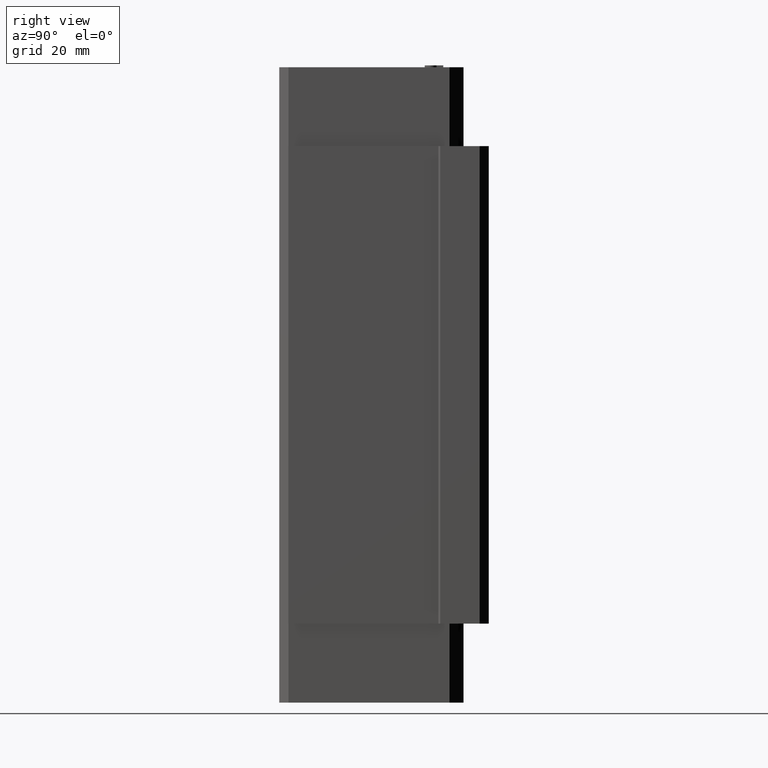
[diagram: clean part render]
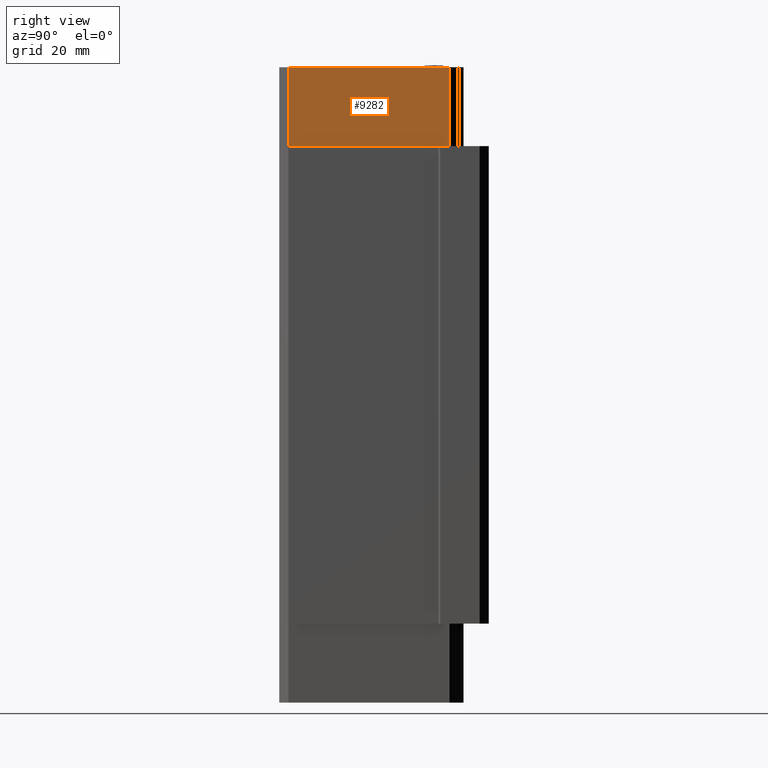
[diagram: same view with one face highlighted and labeled with its STEP entity id]
A machine part, right view. The second image highlights one B-rep face of the part: STEP entity #9282.
In plain terms, the highlighted planar face has unit normal (1, 0, 0).
Its self-contained STEP definition (entity closure, byte-faithful):
#4021 = CARTESIAN_POINT ( 'NONE',  ( 23.16570532271000000, 11.53429467932999900, 52.30000000000000400 ) ) ;
#4022 = DIRECTION ( 'NONE',  ( 0.0000000000000000000, -1.000000000000000000, 0.0000000000000000000 ) ) ;
#4023 = VECTOR ( 'NONE', #4022, 1000.000000000000000 ) ;
#4024 = CARTESIAN_POINT ( 'NONE',  ( 23.16570532271000000, -14.96570532254000200, 52.29999999999999700 ) ) ;
#4025 = LINE ( 'NONE', #4024, #4023 ) ;
#4026 = CARTESIAN_POINT ( 'NONE',  ( 23.16570532271012400, -14.96570532254037300, 52.30000000000001100 ) ) ;
#4425 = DIRECTION ( 'NONE',  ( 0.0000000000000000000, -1.000000000000000000, 0.0000000000000000000 ) ) ;
#4426 = VECTOR ( 'NONE', #4425, 1000.000000000000000 ) ;
#4427 = CARTESIAN_POINT ( 'NONE',  ( 23.16570532271000000, 0.0000000000000000000, 39.29999999999999700 ) ) ;
#4428 = LINE ( 'NONE', #4427, #4426 ) ;
#4429 = CARTESIAN_POINT ( 'NONE',  ( 23.16570532271024900, -14.96570532254024700, 39.29999999999999700 ) ) ;
#4430 = DIRECTION ( 'NONE',  ( 0.0000000000000000000, 0.0000000000000000000, 1.000000000000000000 ) ) ;
#4431 = VECTOR ( 'NONE', #4430, 1000.000000000000000 ) ;
#4432 = CARTESIAN_POINT ( 'NONE',  ( 23.16570532271024900, -14.96570532254024700, 39.29999999999999700 ) ) ;
#4433 = LINE ( 'NONE', #4432, #4431 ) ;
#4434 = DIRECTION ( 'NONE',  ( 0.0000000000000000000, 0.0000000000000000000, -1.000000000000000000 ) ) ;
#4435 = DIRECTION ( 'NONE',  ( 1.000000000000000000, 0.0000000000000000000, 0.0000000000000000000 ) ) ;
#4436 = CARTESIAN_POINT ( 'NONE',  ( 23.16570532271000000, -14.96570532254000200, 39.29999999999999700 ) ) ;
#4437 = AXIS2_PLACEMENT_3D ( 'NONE', #4436, #4435, #4434 ) ;
#4438 = PLANE ( 'NONE',  #4437 ) ;
#4439 = FACE_OUTER_BOUND ( 'NONE', #9283, .T. ) ;
#4465 = CARTESIAN_POINT ( 'NONE',  ( 23.16570532271000000, 11.53429467932999900, 39.29999999999999700 ) ) ;
#4466 = DIRECTION ( 'NONE',  ( 0.0000000000000000000, 0.0000000000000000000, 1.000000000000000000 ) ) ;
#4467 = VECTOR ( 'NONE', #4466, 1000.000000000000000 ) ;
#4468 = CARTESIAN_POINT ( 'NONE',  ( 23.16570532271000000, 11.53429467932999900, 39.29999999999999700 ) ) ;
#4469 = LINE ( 'NONE', #4468, #4467 ) ;
#8983 = VERTEX_POINT ( 'NONE', #4026 ) ;
#8985 = EDGE_CURVE ( 'NONE', #8986, #8983, #4025, .T. ) ;
#8986 = VERTEX_POINT ( 'NONE', #4021 ) ;
#9282 = ADVANCED_FACE ( 'NONE', ( #4439 ), #4438, .T. ) ;
#9283 = EDGE_LOOP ( 'NONE', ( #9284, #9287, #9289, #9344 ) ) ;
#9284 = ORIENTED_EDGE ( 'NONE', *, *, #9285, .F. ) ;
#9285 = EDGE_CURVE ( 'NONE', #9286, #8983, #4433, .T. ) ;
#9286 = VERTEX_POINT ( 'NONE', #4429 ) ;
#9287 = ORIENTED_EDGE ( 'NONE', *, *, #9288, .F. ) ;
#9288 = EDGE_CURVE ( 'NONE', #9303, #9286, #4428, .T. ) ;
#9289 = ORIENTED_EDGE ( 'NONE', *, *, #9302, .T. ) ;
#9302 = EDGE_CURVE ( 'NONE', #9303, #8986, #4469, .T. ) ;
#9303 = VERTEX_POINT ( 'NONE', #4465 ) ;
#9344 = ORIENTED_EDGE ( 'NONE', *, *, #8985, .T. ) ;